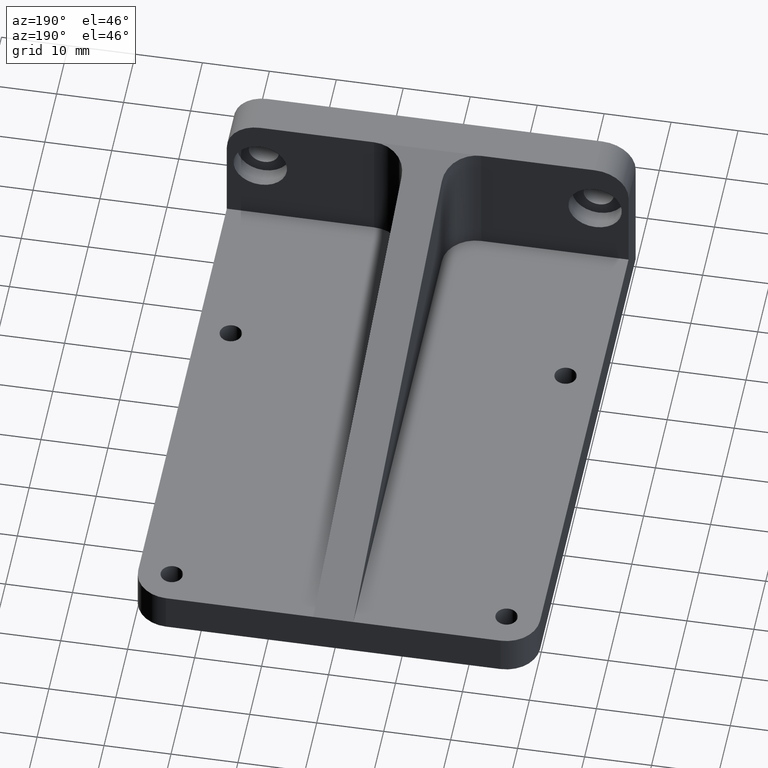
[diagram: clean part render]
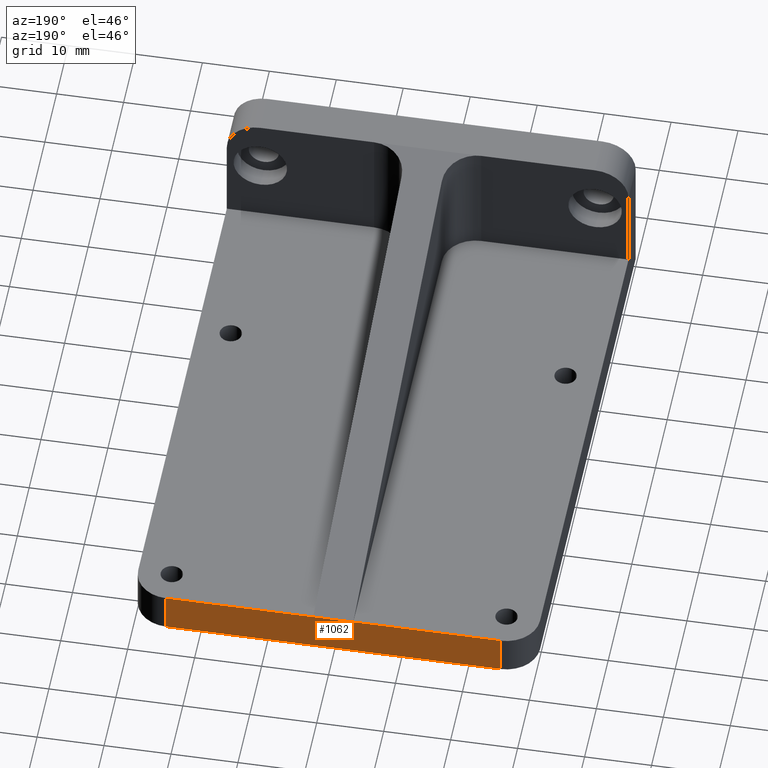
[diagram: same view with one face highlighted and labeled with its STEP entity id]
A machine part, auxiliary view. The second image highlights one B-rep face of the part: STEP entity #1062.
In plain terms, the highlighted planar face has unit normal (0, -1, 0).
Its self-contained STEP definition (entity closure, byte-faithful):
#13 = DIRECTION ( 'NONE',  ( 0.0000000000000000000, -1.000000000000000000, 0.0000000000000000000 ) ) ;
#22 = DIRECTION ( 'NONE',  ( 0.0000000000000000000, -0.0000000000000000000, -1.000000000000000000 ) ) ;
#42 = CARTESIAN_POINT ( 'NONE',  ( 30.00000000000000000, 86.00000000000000000, 6.000000000000000000 ) ) ;
#79 = VERTEX_POINT ( 'NONE', #688 ) ;
#90 = LINE ( 'NONE', #960, #1133 ) ;
#120 = ORIENTED_EDGE ( 'NONE', *, *, #327, .T. ) ;
#153 = VECTOR ( 'NONE', #241, 1000.000000000000000 ) ;
#158 = ORIENTED_EDGE ( 'NONE', *, *, #761, .T. ) ;
#177 = DIRECTION ( 'NONE',  ( -1.000000000000000000, -0.0000000000000000000, -0.0000000000000000000 ) ) ;
#186 = VERTEX_POINT ( 'NONE', #210 ) ;
#210 = CARTESIAN_POINT ( 'NONE',  ( -24.99999999999999289, 86.00000000000000000, 0.0000000000000000000 ) ) ;
#212 = DIRECTION ( 'NONE',  ( 1.000000000000000000, 0.0000000000000000000, -0.0000000000000000000 ) ) ;
#228 = CARTESIAN_POINT ( 'NONE',  ( 30.00000000000000000, 86.00000000000000000, 0.0000000000000000000 ) ) ;
#240 = DIRECTION ( 'NONE',  ( 0.0000000000000000000, 0.0000000000000000000, 1.000000000000000000 ) ) ;
#241 = DIRECTION ( 'NONE',  ( -1.000000000000000000, -0.0000000000000000000, -0.0000000000000000000 ) ) ;
#255 = CARTESIAN_POINT ( 'NONE',  ( 30.00000000000000000, 86.00000000000000000, 6.000000000000000000 ) ) ;
#303 = PLANE ( 'NONE',  #606 ) ;
#323 = VERTEX_POINT ( 'NONE', #458 ) ;
#327 = EDGE_CURVE ( 'NONE', #623, #186, #1167, .T. ) ;
#440 = DIRECTION ( 'NONE',  ( -1.000000000000000000, -0.0000000000000000000, -0.0000000000000000000 ) ) ;
#458 = CARTESIAN_POINT ( 'NONE',  ( 3.000000000000007994, 86.00000000000000000, 6.000000000000005329 ) ) ;
#489 = DIRECTION ( 'NONE',  ( -0.0000000000000000000, -0.0000000000000000000, -1.000000000000000000 ) ) ;
#503 = EDGE_CURVE ( 'NONE', #79, #323, #896, .T. ) ;
#524 = VECTOR ( 'NONE', #440, 1000.000000000000000 ) ;
#544 = EDGE_CURVE ( 'NONE', #323, #1127, #645, .T. ) ;
#559 = EDGE_LOOP ( 'NONE', ( #1142, #615, #120, #1104, #158, #800 ) ) ;
#582 = CARTESIAN_POINT ( 'NONE',  ( 24.99999999999999645, 86.00000000000000000, 0.0000000000000000000 ) ) ;
#596 = CARTESIAN_POINT ( 'NONE',  ( -24.99999999999999289, 86.00000000000000000, 6.000000000000005329 ) ) ;
#605 = LINE ( 'NONE', #1093, #735 ) ;
#606 = AXIS2_PLACEMENT_3D ( 'NONE', #1059, #13, #22 ) ;
#615 = ORIENTED_EDGE ( 'NONE', *, *, #718, .T. ) ;
#620 = VECTOR ( 'NONE', #177, 1000.000000000000000 ) ;
#623 = VERTEX_POINT ( 'NONE', #582 ) ;
#645 = LINE ( 'NONE', #255, #620 ) ;
#681 = CARTESIAN_POINT ( 'NONE',  ( -3.000000000000012879, 86.00000000000000000, 6.000000000000005329 ) ) ;
#688 = CARTESIAN_POINT ( 'NONE',  ( 24.99999999999999645, 86.00000000000000000, 6.000000000000000000 ) ) ;
#718 = EDGE_CURVE ( 'NONE', #79, #623, #90, .T. ) ;
#735 = VECTOR ( 'NONE', #240, 1000.000000000000000 ) ;
#761 = EDGE_CURVE ( 'NONE', #832, #1127, #1066, .T. ) ;
#800 = ORIENTED_EDGE ( 'NONE', *, *, #544, .F. ) ;
#832 = VERTEX_POINT ( 'NONE', #596 ) ;
#884 = VECTOR ( 'NONE', #212, 1000.000000000000000 ) ;
#896 = LINE ( 'NONE', #42, #524 ) ;
#915 = EDGE_CURVE ( 'NONE', #186, #832, #605, .T. ) ;
#951 = CARTESIAN_POINT ( 'NONE',  ( -30.00000000000000000, 86.00000000000000000, 6.000000000000005329 ) ) ;
#960 = CARTESIAN_POINT ( 'NONE',  ( 24.99999999999999645, 86.00000000000000000, 0.0000000000000000000 ) ) ;
#1059 = CARTESIAN_POINT ( 'NONE',  ( 30.00000000000000000, 86.00000000000000000, 0.0000000000000000000 ) ) ;
#1062 = ADVANCED_FACE ( 'NONE', ( #1171 ), #303, .F. ) ;
#1066 = LINE ( 'NONE', #951, #884 ) ;
#1093 = CARTESIAN_POINT ( 'NONE',  ( -24.99999999999999289, 86.00000000000000000, 6.000000000000000000 ) ) ;
#1104 = ORIENTED_EDGE ( 'NONE', *, *, #915, .T. ) ;
#1127 = VERTEX_POINT ( 'NONE', #681 ) ;
#1133 = VECTOR ( 'NONE', #489, 1000.000000000000000 ) ;
#1142 = ORIENTED_EDGE ( 'NONE', *, *, #503, .F. ) ;
#1167 = LINE ( 'NONE', #228, #153 ) ;
#1171 = FACE_OUTER_BOUND ( 'NONE', #559, .T. ) ;